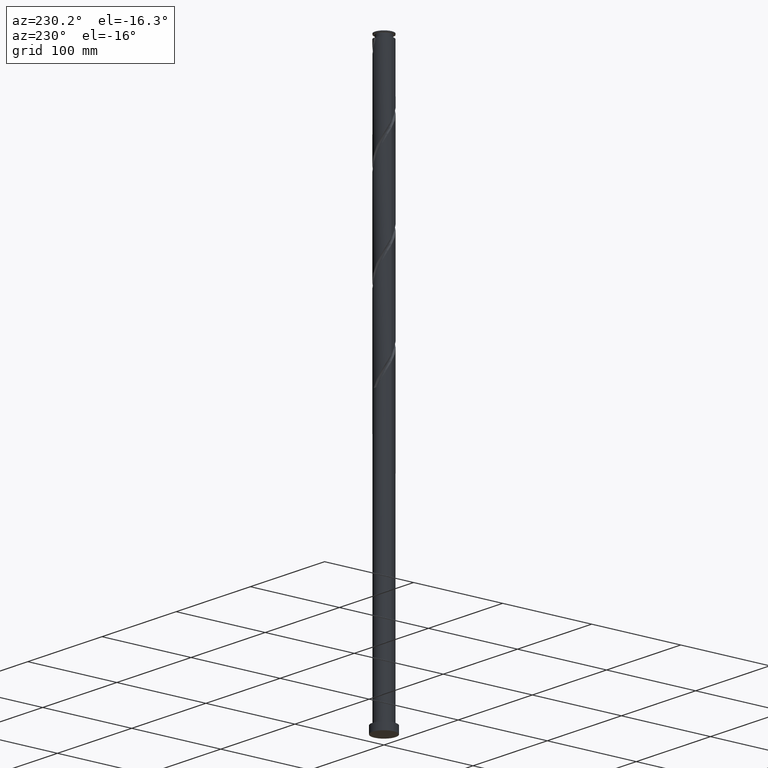
[diagram: clean part render]
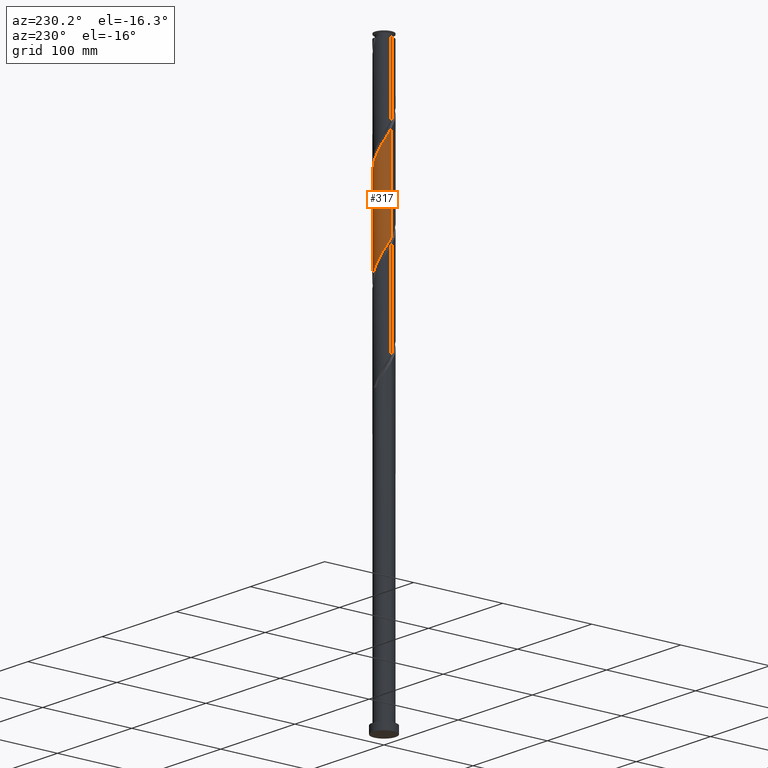
[diagram: same view with one face highlighted and labeled with its STEP entity id]
A machine part, auxiliary view. The second image highlights one B-rep face of the part: STEP entity #317.
In plain terms, the highlighted cylindrical surface (edge-blend (fillet) strip) has radius 10 mm, axis along (-0, -0, -1).
Its self-contained STEP definition (entity closure, byte-faithful):
#70 = CARTESIAN_POINT ( 'NONE',  ( -9.941806644708188756, 1.077256069482184886, 442.7110863558779670 ) ) ;
#78 = CARTESIAN_POINT ( 'NONE',  ( 5.395764636050380147, 8.419366008931321588, 408.7404981205837657 ) ) ;
#114 = CARTESIAN_POINT ( 'NONE',  ( -1.081871141041356399, 9.984398327774638204, 518.3728510617602296 ) ) ;
#125 = CARTESIAN_POINT ( 'NONE',  ( 10.00000000000001599, 6.752312032206668672E-15, 490.3187599341250120 ) ) ;
#131 = ORIENTED_EDGE ( 'NONE', *, *, #1842, .F. ) ;
#133 = CARTESIAN_POINT ( 'NONE',  ( -8.619694891282842164, 5.153592447475790372, 533.8140275323485184 ) ) ;
#154 = CARTESIAN_POINT ( 'NONE',  ( 0.000000000000000000, 0.000000000000000000, 630.0000000000000000 ) ) ;
#155 = CARTESIAN_POINT ( 'NONE',  ( 3.467124458470610904, 9.379714707253905104, 510.6522628264662558 ) ) ;
#159 = CARTESIAN_POINT ( 'NONE',  ( -10.00000000000000178, 6.931576953415743534E-15, 444.5151774835131846 ) ) ;
#205 = DIRECTION ( 'NONE',  ( -0.000000000000000000, -0.000000000000000000, -1.000000000000000000 ) ) ;
#218 = VECTOR ( 'NONE', #205, 1000.000000000000000 ) ;
#237 = CARTESIAN_POINT ( 'NONE',  ( 3.756837045000864794, 9.267479453298463454, 411.8287334147015031 ) ) ;
#244 = CARTESIAN_POINT ( 'NONE',  ( -9.841984169373612090, 1.998500123414084007, 441.1669687088191267 ) ) ;
#256 = CARTESIAN_POINT ( 'NONE',  ( 2.898078607385139893, 9.615601672225375651, 413.3728510617602865 ) ) ;
#269 = CARTESIAN_POINT ( 'NONE',  ( 10.00000000000000178, 0.3845118788768084328, 392.6585832355729053 ) ) ;
#288 = CARTESIAN_POINT ( 'NONE',  ( -9.019796612071713682, 4.317785205039719187, 535.3581451794075292 ) ) ;
#298 = CARTESIAN_POINT ( 'NONE',  ( 9.841984169373624525, 1.998500123414083118, 493.6669687088191267 ) ) ;
#311 = CARTESIAN_POINT ( 'NONE',  ( -2.898078607385141225, 9.615601672225386309, 521.4610863558777964 ) ) ;
#317 = ADVANCED_FACE ( 'NONE', ( #321 ), #1678, .T. ) ;
#321 = FACE_OUTER_BOUND ( 'NONE', #519, .T. ) ;
#331 = CARTESIAN_POINT ( 'NONE',  ( 5.131608130647618005, 8.582924792486041454, 507.5640275323485753 ) ) ;
#333 =( BOUNDED_CURVE ( )  B_SPLINE_CURVE ( 2, ( #125, #1827, #1648, #298, #1004, #1164, #1302, #1014, #1985, #978, #821, #2009, #331, #2173, #155, #1975, #466, #456, #1316, #114, #840, #311, #800, #1495, #1658, #1998, #994, #2021, #1470, #133, #288, #2151, #1143, #2161, #650, #488, #663 ),
 .UNSPECIFIED., .F., .T. ) 
 B_SPLINE_CURVE_WITH_KNOTS ( ( 3, 2, 2, 2, 2, 2, 2, 2, 2, 2, 2, 2, 2, 2, 2, 2, 2, 2, 3 ),
 ( 0.4295293573162904943, 0.4338235294117647189, 0.4411764705882352811, 0.4485294117647058432, 0.4558823529411765163, 0.4632352941176470784, 0.4705882352941176405, 0.4779411764705882026, 0.4852941176470588758, 0.4926470588235294379, 0.5000000000000000000, 0.5073529411764705621, 0.5147058823529411242, 0.5220588235294116863, 0.5294117647058823595, 0.5367647058823529216, 0.5441176470588235947, 0.5514705882352941568, 0.5545293573162901613 ),
 .UNSPECIFIED. ) 
 CURVE ( )  GEOMETRIC_REPRESENTATION_ITEM ( )  RATIONAL_B_SPLINE_CURVE ( ( 0.9072066346053018204, 0.9068261157890689095, 0.9090909090909401469, 0.9052128875409715114, 0.9090909090909401469, 0.9052128875409715114, 0.9090909090909401469, 0.9052128875409715114, 0.9090909090909401469, 0.9052128875409715114, 0.9090909090909401469, 0.9052128875409715114, 0.9090909090909401469, 0.9052128875409715114, 0.9090909090909401469, 0.9052128875409715114, 0.9090909090909401469, 0.9052128875409715114, 0.9090909090909401469, 0.9052128875409715114, 0.9090909090909401469, 0.9052128875409715114, 0.9090909090909401469, 0.9052128875409715114, 0.9090909090909401469, 0.9052128875409715114, 0.9090909090909401469, 0.9052128875409715114, 0.9090909090909401469, 0.9052128875409715114, 0.9090909090909401469, 0.9052128875409715114, 0.9090909090909401469, 0.9052128875409715114, 0.9090909090909401469, 0.9074776808428428598, 0.9072066346053018204 ) ) 
 REPRESENTATION_ITEM ( '' )  );
#380 = CARTESIAN_POINT ( 'NONE',  ( 10.00000000000001599, 6.752312032206668672E-15, 490.3187599341250689 ) ) ;
#407 = CARTESIAN_POINT ( 'NONE',  ( -2.597965892986461078, 9.700991101550700435, 422.6375569441133280 ) ) ;
#415 = CARTESIAN_POINT ( 'NONE',  ( -7.885592126811174829, 6.149588344724682187, 433.4463804735250392 ) ) ;
#425 = CARTESIAN_POINT ( 'NONE',  ( 6.175933789484159497, 7.919374783491096359, 407.1963804735251529 ) ) ;
#442 = CARTESIAN_POINT ( 'NONE',  ( 7.525958078366985937, 6.649707522601990384, 404.1081451794073587 ) ) ;
#451 = VERTEX_POINT ( 'NONE', #380 ) ;
#456 = CARTESIAN_POINT ( 'NONE',  ( 0.7711781494491821709, 10.01318827323741090, 515.2846157676426628 ) ) ;
#466 = CARTESIAN_POINT ( 'NONE',  ( 1.684572021217823679, 9.857089687394065436, 513.7404981205837657 ) ) ;
#488 = CARTESIAN_POINT ( 'NONE',  ( -10.00000000000001243, 0.3845118788768654428, 542.1753541820652345 ) ) ;
#490 =( BOUNDED_CURVE ( )  B_SPLINE_CURVE ( 2, ( #759, #1771, #70, #244, #1629, #1780, #1935, #2067, #415, #932, #1441, #1792, #960, #605, #1458, #407, #1095, #1084, #1941, #1763, #2129, #256, #237, #2112, #78, #425, #940, #442, #1597, #767, #1433, #1264, #2102, #590, #1274, #269, #1958 ),
 .UNSPECIFIED., .F., .T. ) 
 B_SPLINE_CURVE_WITH_KNOTS ( ( 3, 2, 2, 2, 2, 2, 2, 2, 2, 2, 2, 2, 2, 2, 2, 2, 2, 2, 3 ),
 ( 0.6795293573162904943, 0.6838235294117647189, 0.6911764705882352811, 0.6985294117647058432, 0.7058823529411765163, 0.7132352941176470784, 0.7205882352941176405, 0.7279411764705882026, 0.7352941176470588758, 0.7426470588235294379, 0.7500000000000000000, 0.7573529411764705621, 0.7647058823529411242, 0.7720588235294117974, 0.7794117647058823595, 0.7867647058823529216, 0.7941176470588234837, 0.8014705882352941568, 0.8045293573162906053 ),
 .UNSPECIFIED. ) 
 CURVE ( )  GEOMETRIC_REPRESENTATION_ITEM ( )  RATIONAL_B_SPLINE_CURVE ( ( 0.9072066346052956032, 0.9068261157890626922, 0.9090909090909340406, 0.9052128875409651831, 0.9090909090909340406, 0.9052128875409651831, 0.9090909090909340406, 0.9052128875409651831, 0.9090909090909340406, 0.9052128875409651831, 0.9090909090909340406, 0.9052128875409651831, 0.9090909090909340406, 0.9052128875409651831, 0.9090909090909340406, 0.9052128875409651831, 0.9090909090909340406, 0.9052128875409651831, 0.9090909090909340406, 0.9052128875409651831, 0.9090909090909340406, 0.9052128875409651831, 0.9090909090909340406, 0.9052128875409651831, 0.9090909090909340406, 0.9052128875409651831, 0.9090909090909340406, 0.9052128875409651831, 0.9090909090909340406, 0.9052128875409651831, 0.9090909090909340406, 0.9052128875409651831, 0.9090909090909340406, 0.9052128875409651831, 0.9090909090909340406, 0.9074776808428363095, 0.9072066346052954922 ) ) 
 REPRESENTATION_ITEM ( '' )  );
#519 = EDGE_LOOP ( 'NONE', ( #543, #1905, #1467, #131 ) ) ;
#543 = ORIENTED_EDGE ( 'NONE', *, *, #1764, .F. ) ;
#590 = CARTESIAN_POINT ( 'NONE',  ( 9.899318434635521413, 1.691788894387290743, 394.8434392970544309 ) ) ;
#605 = CARTESIAN_POINT ( 'NONE',  ( -4.336283023954739413, 9.058438312957086680, 425.7257922382308948 ) ) ;
#650 = CARTESIAN_POINT ( 'NONE',  ( -9.970473777339156740, 0.7678884394185070406, 541.5346157676427765 ) ) ;
#654 = AXIS2_PLACEMENT_3D ( 'NONE', #154, #852, #685 ) ;
#663 = CARTESIAN_POINT ( 'NONE',  ( -10.00000000000001776, 1.389303139369956340E-14, 542.8187599341250689 ) ) ;
#685 = DIRECTION ( 'NONE',  ( -1.000000000000000000, 0.000000000000000000, 0.000000000000000000 ) ) ;
#759 = CARTESIAN_POINT ( 'NONE',  ( -10.00000000000000178, 6.931576953415744323E-15, 444.5151774835131846 ) ) ;
#767 = CARTESIAN_POINT ( 'NONE',  ( 8.619694891282829730, 5.153592447475785931, 401.0199098852896782 ) ) ;
#770 = CARTESIAN_POINT ( 'NONE',  ( 10.00000000000000178, -7.319984282701970376E-15, 392.0151774835132414 ) ) ;
#800 = CARTESIAN_POINT ( 'NONE',  ( -3.756837045000871900, 9.267479453298477665, 523.0052040029368072 ) ) ;
#821 = CARTESIAN_POINT ( 'NONE',  ( 6.621341042621002870, 7.493853667993720435, 504.4757922382307811 ) ) ;
#840 = CARTESIAN_POINT ( 'NONE',  ( -1.989974874213246370, 9.800000000000014921, 519.9169687088191267 ) ) ;
#852 = DIRECTION ( 'NONE',  ( -0.000000000000000000, -0.000000000000000000, -1.000000000000000000 ) ) ;
#932 = CARTESIAN_POINT ( 'NONE',  ( -7.315748847901494045, 6.880296063972447307, 431.9022628264661989 ) ) ;
#940 = CARTESIAN_POINT ( 'NONE',  ( 6.850945933925575382, 7.284541153046539819, 405.6522628264663126 ) ) ;
#960 = CARTESIAN_POINT ( 'NONE',  ( -5.131608130647609123, 8.582924792486027243, 427.2699098852897350 ) ) ;
#978 = CARTESIAN_POINT ( 'NONE',  ( 7.315748847901506480, 6.880296063972454412, 502.9316745911720545 ) ) ;
#994 = CARTESIAN_POINT ( 'NONE',  ( -6.850945933925579823, 7.284541153046557582, 529.1816745911722819 ) ) ;
#1004 = CARTESIAN_POINT ( 'NONE',  ( 9.574583210674507683, 2.885715914962901696, 495.2110863558780807 ) ) ;
#1014 = CARTESIAN_POINT ( 'NONE',  ( 8.455435405720862718, 5.418880625476918844, 499.8434392970543172 ) ) ;
#1037 = LINE ( 'NONE', #2074, #218 ) ;
#1084 = CARTESIAN_POINT ( 'NONE',  ( -0.7711781494491763977, 10.01318827323739669, 419.5493216499957612 ) ) ;
#1095 = CARTESIAN_POINT ( 'NONE',  ( -1.684572021217819016, 9.857089687394051225, 421.0934392970544309 ) ) ;
#1143 = CARTESIAN_POINT ( 'NONE',  ( -9.659608383748059524, 2.586883428495473591, 538.4463804735250960 ) ) ;
#1164 = CARTESIAN_POINT ( 'NONE',  ( 9.307182251975387288, 3.772931706511726713, 496.7552040029366367 ) ) ;
#1205 = VERTEX_POINT ( 'NONE', #770 ) ;
#1264 = CARTESIAN_POINT ( 'NONE',  ( 9.419898332860572765, 3.481977962603642229, 397.9316745911721114 ) ) ;
#1274 = CARTESIAN_POINT ( 'NONE',  ( 9.970473777339142529, 0.7678884394185043760, 393.2993216499957612 ) ) ;
#1276 = EDGE_CURVE ( 'NONE', #451, #1205, #2167, .T. ) ;
#1302 = CARTESIAN_POINT ( 'NONE',  ( 8.881308828848125003, 4.595906165994322556, 498.2993216499956475 ) ) ;
#1316 = CARTESIAN_POINT ( 'NONE',  ( -0.1553464957960909998, 9.998793300506024551, 516.8287334147014462 ) ) ;
#1433 = CARTESIAN_POINT ( 'NONE',  ( 9.019796612071708353, 4.317785205039710306, 399.4757922382309516 ) ) ;
#1441 = CARTESIAN_POINT ( 'NONE',  ( -6.621341042620988659, 7.493853667993711554, 430.3581451794074155 ) ) ;
#1458 = CARTESIAN_POINT ( 'NONE',  ( -3.467124458470598913, 9.379714707253892669, 424.1816745911721682 ) ) ;
#1467 = ORIENTED_EDGE ( 'NONE', *, *, #1639, .F. ) ;
#1470 = CARTESIAN_POINT ( 'NONE',  ( -8.072826484824918936, 5.901649985038897483, 532.2699098852896213 ) ) ;
#1489 = CARTESIAN_POINT ( 'NONE',  ( 10.00000000000000178, 1.224646799147353454E-15, 630.0000000000000000 ) ) ;
#1495 = CARTESIAN_POINT ( 'NONE',  ( -4.615595482616599909, 8.919357234371563692, 524.5493216499955906 ) ) ;
#1537 = VERTEX_POINT ( 'NONE', #159 ) ;
#1597 = CARTESIAN_POINT ( 'NONE',  ( 8.072826484824908277, 5.901649985038888602, 402.5640275323484616 ) ) ;
#1629 = CARTESIAN_POINT ( 'NONE',  ( -9.574583210674489919, 2.885715914962902584, 439.6228510617603433 ) ) ;
#1639 = EDGE_CURVE ( 'NONE', #1537, #1205, #490, .T. ) ;
#1648 = CARTESIAN_POINT ( 'NONE',  ( 9.941806644708201190, 1.077256069482184664, 492.1228510617603433 ) ) ;
#1658 = CARTESIAN_POINT ( 'NONE',  ( -5.395764636050383700, 8.419366008931335799, 526.0934392970544877 ) ) ;
#1678 = CYLINDRICAL_SURFACE ( 'NONE', #654, 10.00000000000000178 ) ;
#1712 = VERTEX_POINT ( 'NONE', #1804 ) ;
#1763 = CARTESIAN_POINT ( 'NONE',  ( 1.081871141041356177, 9.984398327774622217, 416.4610863558779101 ) ) ;
#1764 = EDGE_CURVE ( 'NONE', #451, #1712, #333, .T. ) ;
#1771 = CARTESIAN_POINT ( 'NONE',  ( -10.00000000000000178, 0.5401998367926483802, 443.6112582515004874 ) ) ;
#1780 = CARTESIAN_POINT ( 'NONE',  ( -9.307182251975373077, 3.772931706511721828, 438.0787334147015599 ) ) ;
#1792 = CARTESIAN_POINT ( 'NONE',  ( -5.926933237340482385, 8.107411272014974912, 428.8140275323486321 ) ) ;
#1804 = CARTESIAN_POINT ( 'NONE',  ( -10.00000000000001776, 1.389303139369956340E-14, 542.8187599341250689 ) ) ;
#1827 = CARTESIAN_POINT ( 'NONE',  ( 10.00000000000001776, 0.5401998367926502675, 491.2226791661378229 ) ) ;
#1842 = EDGE_CURVE ( 'NONE', #1712, #1537, #1037, .T. ) ;
#1905 = ORIENTED_EDGE ( 'NONE', *, *, #1276, .T. ) ;
#1935 = CARTESIAN_POINT ( 'NONE',  ( -8.881308828848109016, 4.595906165994316339, 436.5346157676427765 ) ) ;
#1941 = CARTESIAN_POINT ( 'NONE',  ( 0.1553464957960895010, 9.998793300506012116, 418.0052040029368072 ) ) ;
#1958 = CARTESIAN_POINT ( 'NONE',  ( 10.00000000000000178, -7.319984282701970376E-15, 392.0151774835132414 ) ) ;
#1975 = CARTESIAN_POINT ( 'NONE',  ( 2.597965892986464631, 9.700991101550712870, 512.1963804735248686 ) ) ;
#1980 = DIRECTION ( 'NONE',  ( -0.000000000000000000, -0.000000000000000000, -1.000000000000000000 ) ) ;
#1985 = CARTESIAN_POINT ( 'NONE',  ( 7.885592126811185487, 6.149588344724691957, 501.3875569441132711 ) ) ;
#1998 = CARTESIAN_POINT ( 'NONE',  ( -6.175933789484167491, 7.919374783491107017, 527.6375569441131574 ) ) ;
#2009 = CARTESIAN_POINT ( 'NONE',  ( 5.926933237340488603, 8.107411272014987347, 506.0199098852896782 ) ) ;
#2021 = CARTESIAN_POINT ( 'NONE',  ( -7.525958078366996595, 6.649707522602001930, 530.7257922382308379 ) ) ;
#2067 = CARTESIAN_POINT ( 'NONE',  ( -8.455435405720850284, 5.418880625476918844, 434.9904981205838794 ) ) ;
#2074 = CARTESIAN_POINT ( 'NONE',  ( -10.00000000000000178, 0.000000000000000000, 630.0000000000000000 ) ) ;
#2102 = CARTESIAN_POINT ( 'NONE',  ( 9.659608383748043536, 2.586883428495471371, 396.3875569441133280 ) ) ;
#2112 = CARTESIAN_POINT ( 'NONE',  ( 4.615595482616599021, 8.919357234371545928, 410.2846157676426628 ) ) ;
#2120 = VECTOR ( 'NONE', #1980, 1000.000000000000000 ) ;
#2129 = CARTESIAN_POINT ( 'NONE',  ( 1.989974874213249922, 9.799999999999998934, 414.9169687088191836 ) ) ;
#2151 = CARTESIAN_POINT ( 'NONE',  ( -9.419898332860585199, 3.481977962603648447, 536.9022628264660852 ) ) ;
#2161 = CARTESIAN_POINT ( 'NONE',  ( -9.899318434635530295, 1.691788894387298736, 539.9904981205836521 ) ) ;
#2167 = LINE ( 'NONE', #1489, #2120 ) ;
#2173 = CARTESIAN_POINT ( 'NONE',  ( 4.336283023954746518, 9.058438312957090233, 509.1081451794073018 ) ) ;